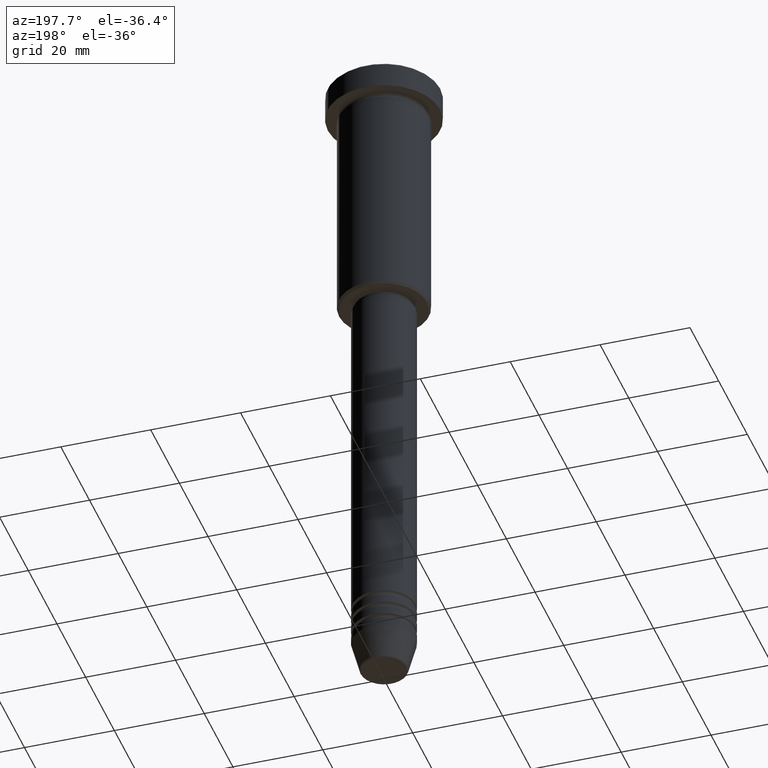
[diagram: clean part render]
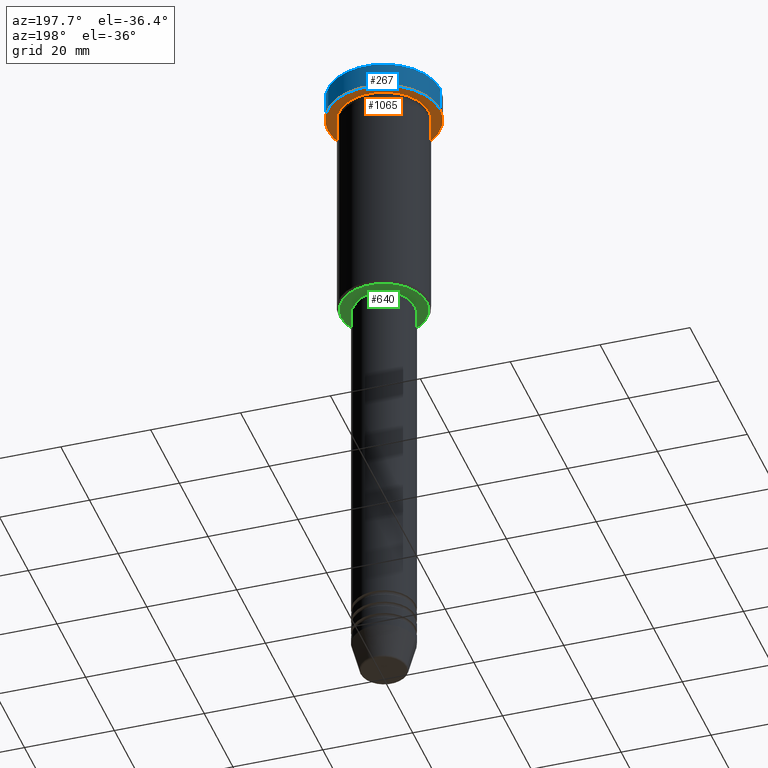
[diagram: same view with three faces highlighted in distinct colors, each labeled with its STEP entity id]
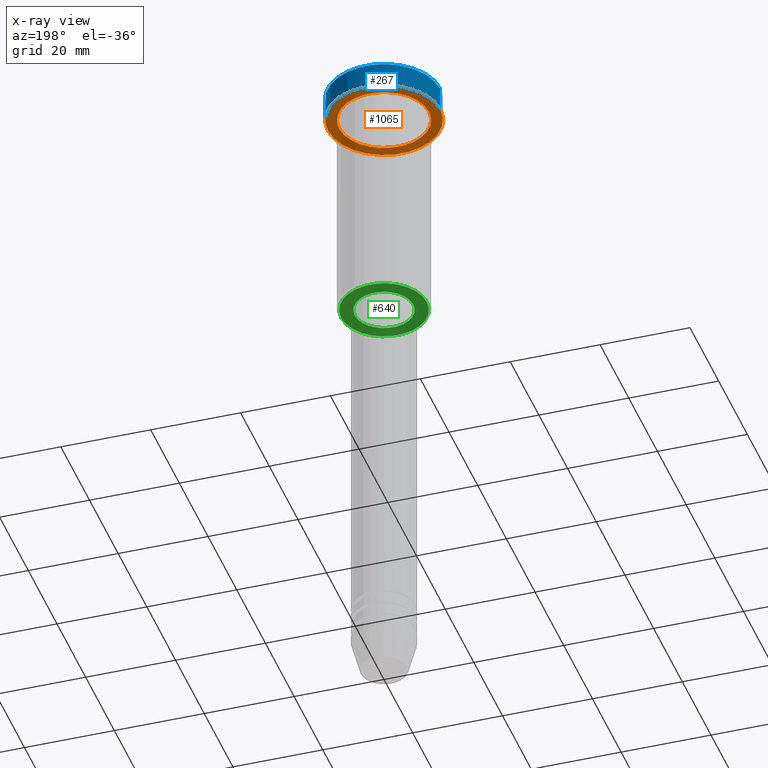
[diagram: x-ray of the same camera — body ghosted, the three highlighted faces saturated]
A machine part, auxiliary view with three faces highlighted in distinct colors.
The next image is the same camera in x-ray (body ghosted, the three faces saturated) — at least one of them is partly hidden behind the body in this view.
Their STEP definitions:

[orange] entity #1065 — the highlighted planar face has unit normal (0, 0, -1).
#35 = CARTESIAN_POINT ( 'NONE',  ( 10.00000000000000000, 1.224646799147353256E-15, -5.999999999999996447 ) ) ;
#51 = CARTESIAN_POINT ( 'NONE',  ( 0.000000000000000000, 0.000000000000000000, -5.999999999999996447 ) ) ;
#79 = DIRECTION ( 'NONE',  ( -0.000000000000000000, -0.000000000000000000, 1.000000000000000000 ) ) ;
#83 = EDGE_CURVE ( 'NONE', #693, #544, #987, .T. ) ;
#137 = DIRECTION ( 'NONE',  ( 1.000000000000000000, 0.000000000000000000, 0.000000000000000000 ) ) ;
#159 = DIRECTION ( 'NONE',  ( -0.000000000000000000, -0.000000000000000000, 1.000000000000000000 ) ) ;
#173 = PLANE ( 'NONE',  #745 ) ;
#184 = CIRCLE ( 'NONE', #558, 10.00000000000000000 ) ;
#231 = EDGE_CURVE ( 'NONE', #368, #605, #184, .T. ) ;
#260 = EDGE_LOOP ( 'NONE', ( #290, #1139 ) ) ;
#281 = CIRCLE ( 'NONE', #1011, 10.00000000000000000 ) ;
#290 = ORIENTED_EDGE ( 'NONE', *, *, #385, .F. ) ;
#365 = CARTESIAN_POINT ( 'NONE',  ( 0.000000000000000000, 12.50000000000000000, -5.999999999999996447 ) ) ;
#368 = VERTEX_POINT ( 'NONE', #35 ) ;
#375 = CIRCLE ( 'NONE', #592, 12.50000000000000000 ) ;
#385 = EDGE_CURVE ( 'NONE', #544, #693, #375, .T. ) ;
#436 = CARTESIAN_POINT ( 'NONE',  ( -10.00000000000000000, 0.000000000000000000, -5.999999999999996447 ) ) ;
#438 = DIRECTION ( 'NONE',  ( 0.000000000000000000, 0.000000000000000000, -1.000000000000000000 ) ) ;
#479 = DIRECTION ( 'NONE',  ( 1.000000000000000000, 0.000000000000000000, 0.000000000000000000 ) ) ;
#500 = CARTESIAN_POINT ( 'NONE',  ( 12.50000000000000000, 0.000000000000000000, -5.999999999999996447 ) ) ;
#508 = DIRECTION ( 'NONE',  ( -0.000000000000000000, -0.000000000000000000, 1.000000000000000000 ) ) ;
#544 = VERTEX_POINT ( 'NONE', #500 ) ;
#558 = AXIS2_PLACEMENT_3D ( 'NONE', #695, #79, #1161 ) ;
#592 = AXIS2_PLACEMENT_3D ( 'NONE', #51, #654, #479 ) ;
#605 = VERTEX_POINT ( 'NONE', #436 ) ;
#648 = ORIENTED_EDGE ( 'NONE', *, *, #1081, .T. ) ;
#654 = DIRECTION ( 'NONE',  ( -0.000000000000000000, -0.000000000000000000, 1.000000000000000000 ) ) ;
#693 = VERTEX_POINT ( 'NONE', #1144 ) ;
#695 = CARTESIAN_POINT ( 'NONE',  ( 0.000000000000000000, 0.000000000000000000, -5.999999999999996447 ) ) ;
#711 = FACE_BOUND ( 'NONE', #917, .T. ) ;
#714 = DIRECTION ( 'NONE',  ( -1.000000000000000000, 0.000000000000000000, -0.000000000000000000 ) ) ;
#745 = AXIS2_PLACEMENT_3D ( 'NONE', #365, #438, #714 ) ;
#816 = CARTESIAN_POINT ( 'NONE',  ( 0.000000000000000000, 0.000000000000000000, -5.999999999999996447 ) ) ;
#917 = EDGE_LOOP ( 'NONE', ( #648, #1156 ) ) ;
#962 = FACE_OUTER_BOUND ( 'NONE', #260, .T. ) ;
#987 = CIRCLE ( 'NONE', #1105, 12.50000000000000000 ) ;
#1011 = AXIS2_PLACEMENT_3D ( 'NONE', #816, #159, #1169 ) ;
#1043 = CARTESIAN_POINT ( 'NONE',  ( 0.000000000000000000, 0.000000000000000000, -5.999999999999996447 ) ) ;
#1065 = ADVANCED_FACE ( 'NONE', ( #711, #962 ), #173, .T. ) ;
#1081 = EDGE_CURVE ( 'NONE', #605, #368, #281, .T. ) ;
#1105 = AXIS2_PLACEMENT_3D ( 'NONE', #1043, #508, #137 ) ;
#1139 = ORIENTED_EDGE ( 'NONE', *, *, #83, .F. ) ;
#1144 = CARTESIAN_POINT ( 'NONE',  ( -12.50000000000000000, 1.530808498934191521E-15, -5.999999999999996447 ) ) ;
#1156 = ORIENTED_EDGE ( 'NONE', *, *, #231, .T. ) ;
#1161 = DIRECTION ( 'NONE',  ( -1.000000000000000000, 0.000000000000000000, 0.000000000000000000 ) ) ;
#1169 = DIRECTION ( 'NONE',  ( -1.000000000000000000, 0.000000000000000000, 0.000000000000000000 ) ) ;

[blue] entity #267 — the highlighted cylindrical surface (partial cylindrical patch) has radius 12.5 mm, axis along (-0, -0, 1).
#18 = VERTEX_POINT ( 'NONE', #773 ) ;
#51 = CARTESIAN_POINT ( 'NONE',  ( 0.000000000000000000, 0.000000000000000000, -5.999999999999996447 ) ) ;
#52 = CIRCLE ( 'NONE', #857, 12.50000000000000000 ) ;
#73 = ORIENTED_EDGE ( 'NONE', *, *, #326, .T. ) ;
#95 = CARTESIAN_POINT ( 'NONE',  ( 0.000000000000000000, 0.000000000000000000, 0.000000000000000000 ) ) ;
#106 = ORIENTED_EDGE ( 'NONE', *, *, #1085, .T. ) ;
#111 = DIRECTION ( 'NONE',  ( -0.000000000000000000, -0.000000000000000000, 1.000000000000000000 ) ) ;
#117 = DIRECTION ( 'NONE',  ( 1.000000000000000000, 0.000000000000000000, 0.000000000000000000 ) ) ;
#126 = EDGE_CURVE ( 'NONE', #544, #554, #431, .T. ) ;
#158 = ORIENTED_EDGE ( 'NONE', *, *, #385, .T. ) ;
#179 = VECTOR ( 'NONE', #239, 1000.000000000000000 ) ;
#239 = DIRECTION ( 'NONE',  ( -0.000000000000000000, -0.000000000000000000, 1.000000000000000000 ) ) ;
#255 = CARTESIAN_POINT ( 'NONE',  ( -12.50000000000000000, 1.530808498934191521E-15, 0.000000000000000000 ) ) ;
#267 = ADVANCED_FACE ( 'NONE', ( #1097 ), #641, .T. ) ;
#283 = EDGE_LOOP ( 'NONE', ( #158, #106, #73, #1042 ) ) ;
#326 = EDGE_CURVE ( 'NONE', #18, #554, #52, .T. ) ;
#366 = CARTESIAN_POINT ( 'NONE',  ( 12.50000000000000000, 0.000000000000000000, -0.5000000000000056621 ) ) ;
#367 = DIRECTION ( 'NONE',  ( 0.000000000000000000, 0.000000000000000000, -1.000000000000000000 ) ) ;
#375 = CIRCLE ( 'NONE', #592, 12.50000000000000000 ) ;
#385 = EDGE_CURVE ( 'NONE', #544, #693, #375, .T. ) ;
#431 = LINE ( 'NONE', #966, #179 ) ;
#479 = DIRECTION ( 'NONE',  ( 1.000000000000000000, 0.000000000000000000, 0.000000000000000000 ) ) ;
#500 = CARTESIAN_POINT ( 'NONE',  ( 12.50000000000000000, 0.000000000000000000, -5.999999999999996447 ) ) ;
#544 = VERTEX_POINT ( 'NONE', #500 ) ;
#554 = VERTEX_POINT ( 'NONE', #366 ) ;
#592 = AXIS2_PLACEMENT_3D ( 'NONE', #51, #654, #479 ) ;
#641 = CYLINDRICAL_SURFACE ( 'NONE', #1132, 12.50000000000000000 ) ;
#654 = DIRECTION ( 'NONE',  ( -0.000000000000000000, -0.000000000000000000, 1.000000000000000000 ) ) ;
#693 = VERTEX_POINT ( 'NONE', #1144 ) ;
#773 = CARTESIAN_POINT ( 'NONE',  ( -12.50000000000000000, 1.530808498934191521E-15, -0.5000000000000056621 ) ) ;
#814 = DIRECTION ( 'NONE',  ( 1.000000000000000000, 0.000000000000000000, 0.000000000000000000 ) ) ;
#857 = AXIS2_PLACEMENT_3D ( 'NONE', #915, #367, #117 ) ;
#887 = DIRECTION ( 'NONE',  ( -0.000000000000000000, -0.000000000000000000, 1.000000000000000000 ) ) ;
#915 = CARTESIAN_POINT ( 'NONE',  ( 0.000000000000000000, 0.000000000000000000, -0.5000000000000056621 ) ) ;
#966 = CARTESIAN_POINT ( 'NONE',  ( 12.50000000000000000, 0.000000000000000000, 0.000000000000000000 ) ) ;
#982 = LINE ( 'NONE', #255, #993 ) ;
#993 = VECTOR ( 'NONE', #887, 1000.000000000000000 ) ;
#1042 = ORIENTED_EDGE ( 'NONE', *, *, #126, .F. ) ;
#1085 = EDGE_CURVE ( 'NONE', #693, #18, #982, .T. ) ;
#1097 = FACE_OUTER_BOUND ( 'NONE', #283, .T. ) ;
#1132 = AXIS2_PLACEMENT_3D ( 'NONE', #95, #111, #814 ) ;
#1144 = CARTESIAN_POINT ( 'NONE',  ( -12.50000000000000000, 1.530808498934191521E-15, -5.999999999999996447 ) ) ;

[green] entity #640 — the highlighted planar face has unit normal (0, 0, -1).
#53 = AXIS2_PLACEMENT_3D ( 'NONE', #768, #748, #758 ) ;
#84 = VERTEX_POINT ( 'NONE', #863 ) ;
#98 = FACE_OUTER_BOUND ( 'NONE', #1113, .T. ) ;
#105 = ORIENTED_EDGE ( 'NONE', *, *, #894, .T. ) ;
#116 = DIRECTION ( 'NONE',  ( -1.000000000000000000, 0.000000000000000000, 0.000000000000000000 ) ) ;
#165 = CIRCLE ( 'NONE', #53, 6.500000000000000000 ) ;
#180 = EDGE_LOOP ( 'NONE', ( #1028, #105 ) ) ;
#187 = CARTESIAN_POINT ( 'NONE',  ( 0.000000000000000000, 10.00000000000000000, -56.00000000000000711 ) ) ;
#188 = CIRCLE ( 'NONE', #561, 6.500000000000000000 ) ;
#194 = ORIENTED_EDGE ( 'NONE', *, *, #812, .T. ) ;
#217 = CIRCLE ( 'NONE', #650, 9.499999999999939604 ) ;
#228 = DIRECTION ( 'NONE',  ( 1.000000000000000000, 0.000000000000000000, 0.000000000000000000 ) ) ;
#237 = CIRCLE ( 'NONE', #897, 9.499999999999939604 ) ;
#245 = DIRECTION ( 'NONE',  ( 0.000000000000000000, 0.000000000000000000, -1.000000000000000000 ) ) ;
#331 = VERTEX_POINT ( 'NONE', #983 ) ;
#353 = CARTESIAN_POINT ( 'NONE',  ( 6.500000000000000000, 0.000000000000000000, -56.00000000000000711 ) ) ;
#391 = CARTESIAN_POINT ( 'NONE',  ( 0.000000000000000000, 0.000000000000000000, -56.00000000000000711 ) ) ;
#440 = EDGE_CURVE ( 'NONE', #84, #331, #237, .T. ) ;
#493 = CARTESIAN_POINT ( 'NONE',  ( 0.000000000000000000, 0.000000000000000000, -56.00000000000000711 ) ) ;
#514 = EDGE_CURVE ( 'NONE', #1120, #763, #165, .T. ) ;
#561 = AXIS2_PLACEMENT_3D ( 'NONE', #493, #1023, #228 ) ;
#593 = AXIS2_PLACEMENT_3D ( 'NONE', #187, #245, #903 ) ;
#640 = ADVANCED_FACE ( 'NONE', ( #98, #721 ), #790, .T. ) ;
#650 = AXIS2_PLACEMENT_3D ( 'NONE', #735, #658, #116 ) ;
#652 = CARTESIAN_POINT ( 'NONE',  ( -6.500000000000000000, 7.960204194457795477E-16, -56.00000000000000711 ) ) ;
#658 = DIRECTION ( 'NONE',  ( 0.000000000000000000, 0.000000000000000000, -1.000000000000000000 ) ) ;
#665 = DIRECTION ( 'NONE',  ( 0.000000000000000000, 0.000000000000000000, -1.000000000000000000 ) ) ;
#721 = FACE_BOUND ( 'NONE', #180, .T. ) ;
#735 = CARTESIAN_POINT ( 'NONE',  ( 0.000000000000000000, 0.000000000000000000, -56.00000000000000711 ) ) ;
#748 = DIRECTION ( 'NONE',  ( -0.000000000000000000, -0.000000000000000000, 1.000000000000000000 ) ) ;
#758 = DIRECTION ( 'NONE',  ( 1.000000000000000000, 0.000000000000000000, 0.000000000000000000 ) ) ;
#763 = VERTEX_POINT ( 'NONE', #652 ) ;
#768 = CARTESIAN_POINT ( 'NONE',  ( 0.000000000000000000, 0.000000000000000000, -56.00000000000000711 ) ) ;
#790 = PLANE ( 'NONE',  #593 ) ;
#812 = EDGE_CURVE ( 'NONE', #331, #84, #217, .T. ) ;
#827 = ORIENTED_EDGE ( 'NONE', *, *, #440, .T. ) ;
#863 = CARTESIAN_POINT ( 'NONE',  ( 9.499999999999939604, 0.000000000000000000, -56.00000000000000711 ) ) ;
#894 = EDGE_CURVE ( 'NONE', #763, #1120, #188, .T. ) ;
#897 = AXIS2_PLACEMENT_3D ( 'NONE', #391, #665, #947 ) ;
#903 = DIRECTION ( 'NONE',  ( -1.000000000000000000, 0.000000000000000000, -0.000000000000000000 ) ) ;
#947 = DIRECTION ( 'NONE',  ( -1.000000000000000000, 0.000000000000000000, 0.000000000000000000 ) ) ;
#983 = CARTESIAN_POINT ( 'NONE',  ( -9.499999999999939604, 1.194030629168665525E-15, -56.00000000000000711 ) ) ;
#1023 = DIRECTION ( 'NONE',  ( -0.000000000000000000, -0.000000000000000000, 1.000000000000000000 ) ) ;
#1028 = ORIENTED_EDGE ( 'NONE', *, *, #514, .T. ) ;
#1113 = EDGE_LOOP ( 'NONE', ( #827, #194 ) ) ;
#1120 = VERTEX_POINT ( 'NONE', #353 ) ;